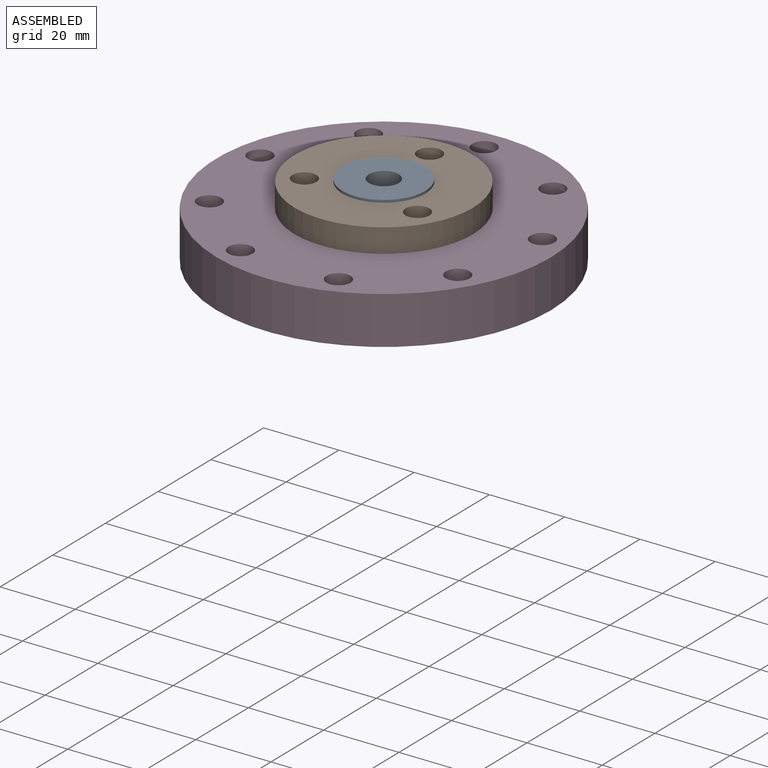
[diagram: assembled view]
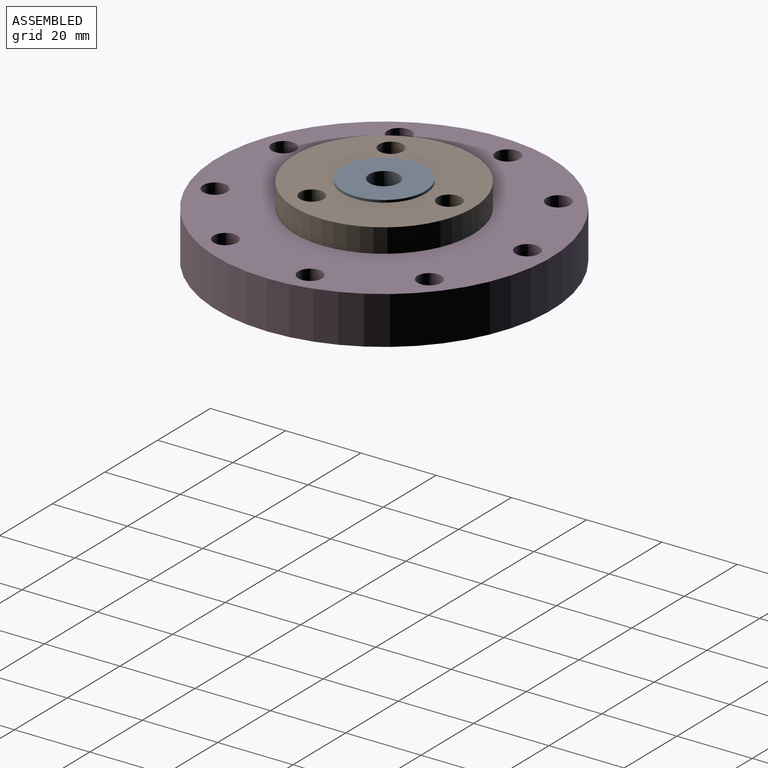
[diagram: assembled view, second angle]
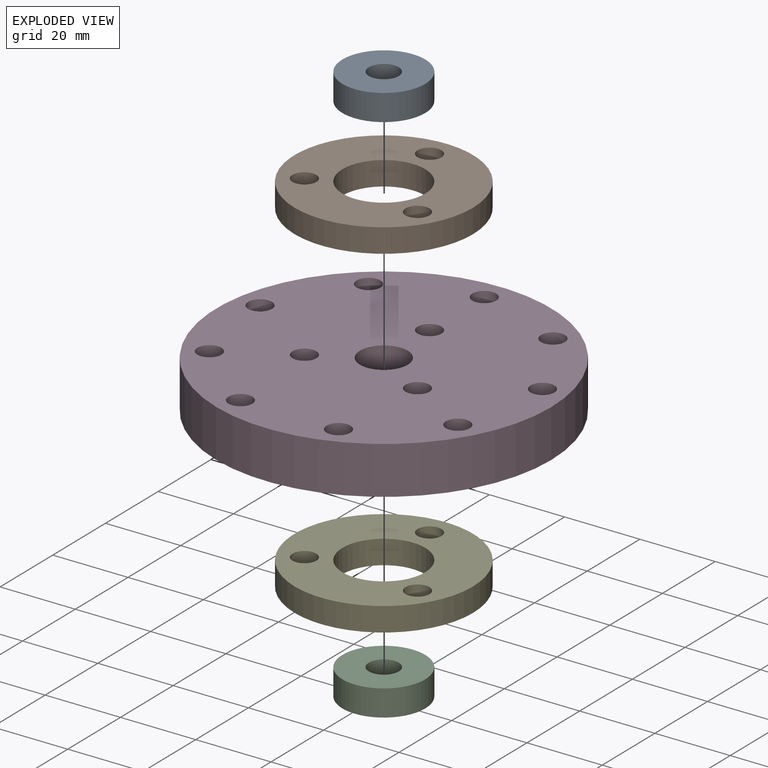
[diagram: exploded view]
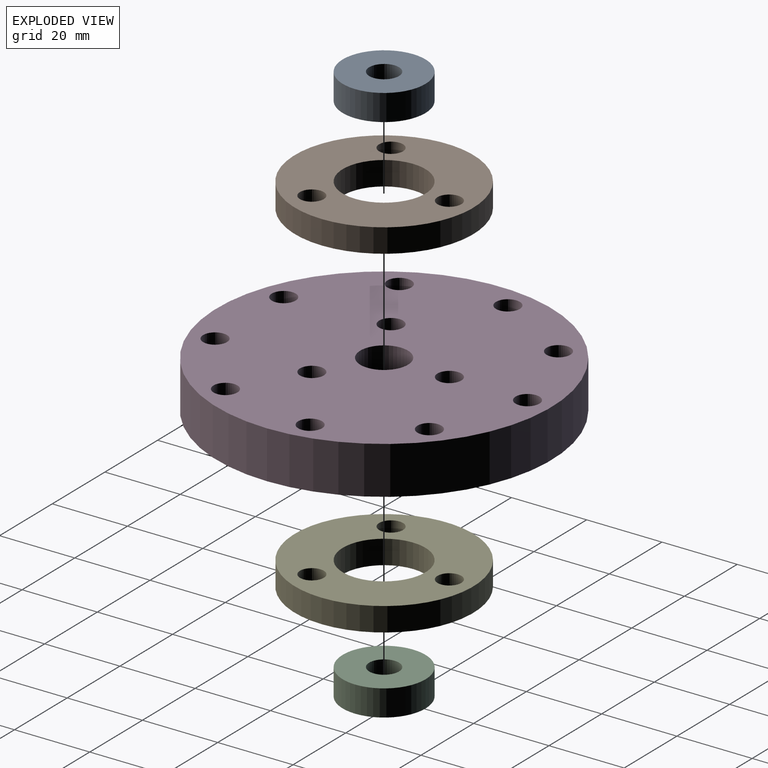
[diagram: exploded view, second angle]
ASSEMBLY  parts=5 mates=4
PART A: 4 faces, bbox 22x22x7 mm
  f0: cylinder r=3.97mm len=7.94mm, axis (0,0,-1), area 174.6mm2, adj f2,f3
  f1: cylinder r=11mm len=22mm, axis (0,0,-1), area 483.8mm2, adj f2,f3
  f2: plane 22x22mm, normal (0,0,1), area 330.6mm2, adj f0,f1
  f3: plane 22x22mm, normal (0,0,-1), area 330.6mm2, adj f0,f1
PART B: 7 faces, bbox 47.4x47.4x6.4 mm
  f0: cylinder r=3.17mm len=6.35mm, axis (0,0,-1), area 126.7mm2, adj f5,f6
  f1: cylinder r=3.17mm len=6.35mm, axis (0,0,-1), area 126.7mm2, adj f5,f6
  f2: cylinder r=3.17mm len=6.35mm, axis (0,0,-1), area 126.7mm2, adj f5,f6
  f3: cylinder r=11mm len=22mm, axis (0,0,-1), area 438.9mm2, adj f5,f6
  f4: cylinder r=23.7mm len=47.4mm, axis (0,0,-1), area 945.6mm2, adj f5,f6
  f5: plane 47.4x47.4mm, normal (0,0,1), area 1289.5mm2, adj f0,f1,f2,f3,f4
  f6: plane 47.4x47.4mm, normal (0,0,-1), area 1289.5mm2, adj f0,f1,f2,f3,f4
PART C: same geometry as A
PART D: 16 faces, bbox 88.9x88.9x12.7 mm
  f0: cylinder r=3.17mm len=12.7mm, axis (0,0,-1), area 253.4mm2, adj f13,f14
  f1: cylinder r=3.17mm len=12.7mm, axis (0,0,-1), area 253.4mm2, adj f13,f14
  f2: cylinder r=44.45mm len=88.9mm, axis (0,0,-1), area 3547mm2, adj f13,f14
  f3: cylinder r=3.17mm len=12.7mm, axis (0,0,-1), area 253.4mm2, adj f13,f14
  f4: cylinder r=3.17mm len=12.7mm, axis (0,0,-1), area 253.4mm2, adj f13,f14
  f5: cylinder r=3.17mm len=12.7mm, axis (0,0,-1), area 253.4mm2, adj f13,f14
  f6: cylinder r=3.17mm len=12.7mm, axis (0,0,-1), area 253.4mm2, adj f13,f14
  f7: cylinder r=3.17mm len=12.7mm, axis (0,0,-1), area 253.4mm2, adj f13,f14
  f8: cylinder r=3.17mm len=12.7mm, axis (0,0,-1), area 253.4mm2, adj f13,f14
  f9: cylinder r=3.17mm len=12.7mm, axis (0,0,-1), area 253.4mm2, adj f13,f14
  f10: cylinder r=3.17mm len=12.7mm, axis (0,0,-1), area 253.4mm2, adj f13,f14
  f11: cylinder r=3.17mm len=12.7mm, axis (0,0,-1), area 253.4mm2, adj f13,f14
  f12: cylinder r=3.17mm len=12.7mm, axis (0,0,-1), area 253.4mm2, adj f13,f14
  f13: plane 88.9x88.9mm, normal (0,0,1), area 5700.5mm2, adj f0,f1,f2,f3,f4,f5,f6,f7
  f14: plane 88.9x88.9mm, normal (0,0,-1), area 5700.5mm2, adj f0,f1,f2,f3,f4,f5,f6,f7
  f15: cylinder r=6.35mm len=12.7mm, axis (0,0,-1), area 506.7mm2, adj f13,f14
PART E: same geometry as B
PLACE A t=(3.11,-1.61,1.25)mm
PLACE B t=(3.11,-1.61,1.25)mm
PLACE C t=(3.11,-1.61,-18.45)mm
PLACE D t=(3.11,-1.61,-11.45)mm
PLACE E t=(3.11,-1.61,-17.8)mm
MATE fastened E.f4 <-> D.f15  axis (0,0,1) through (3.11,-1.61,-11.45)mm
MATE fastened C.f0 <-> D.f2  axis (0,0,1) through (3.11,-1.61,-11.45)mm
MATE fastened B.f4 <-> D.f15  axis (0,0,-1) through (3.11,-1.61,1.25)mm
MATE fastened A.f1 <-> D.f15  axis (0,0,-1) through (3.11,-1.61,1.25)mm
